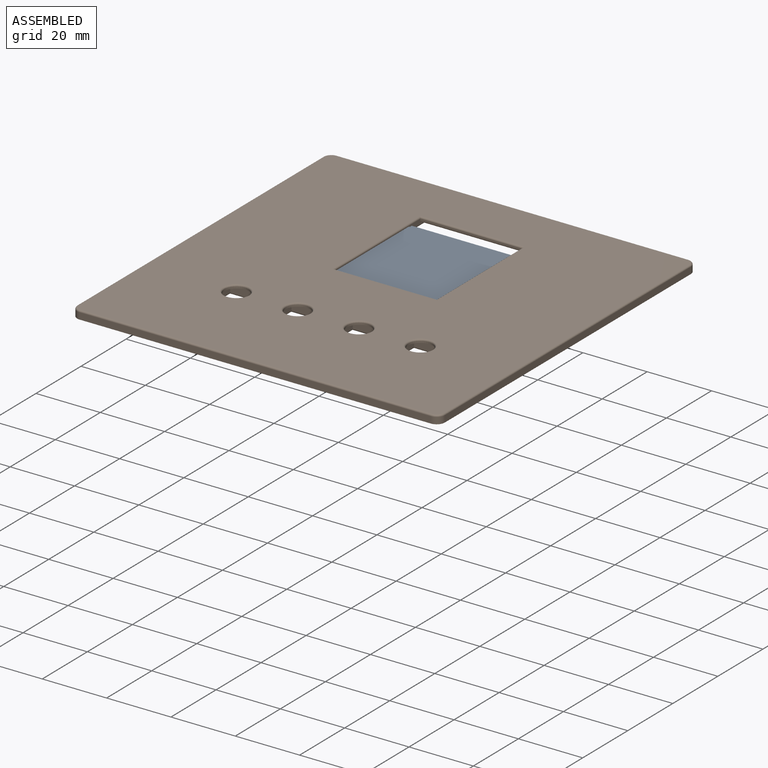
[diagram: assembled view]
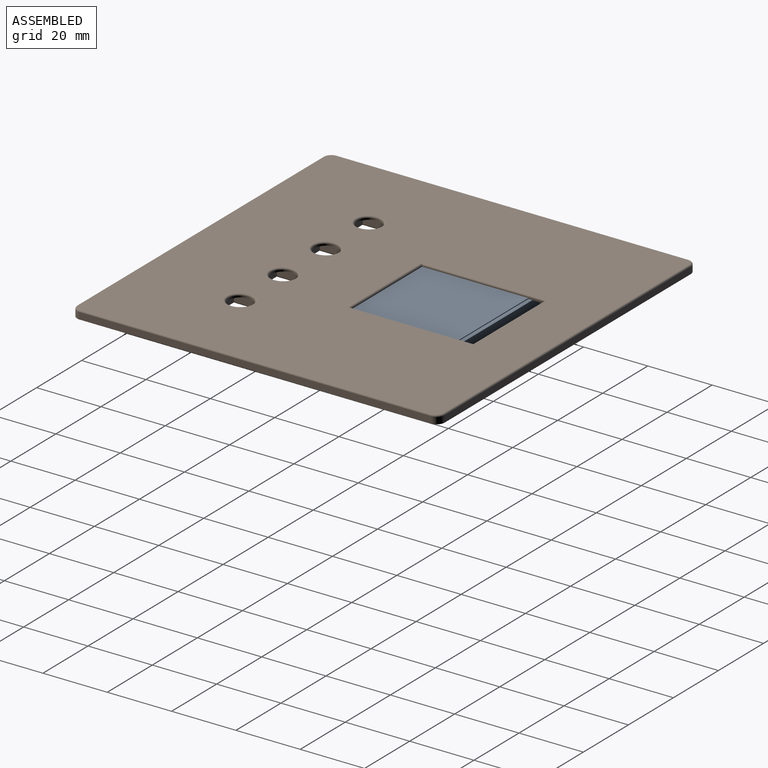
[diagram: assembled view, second angle]
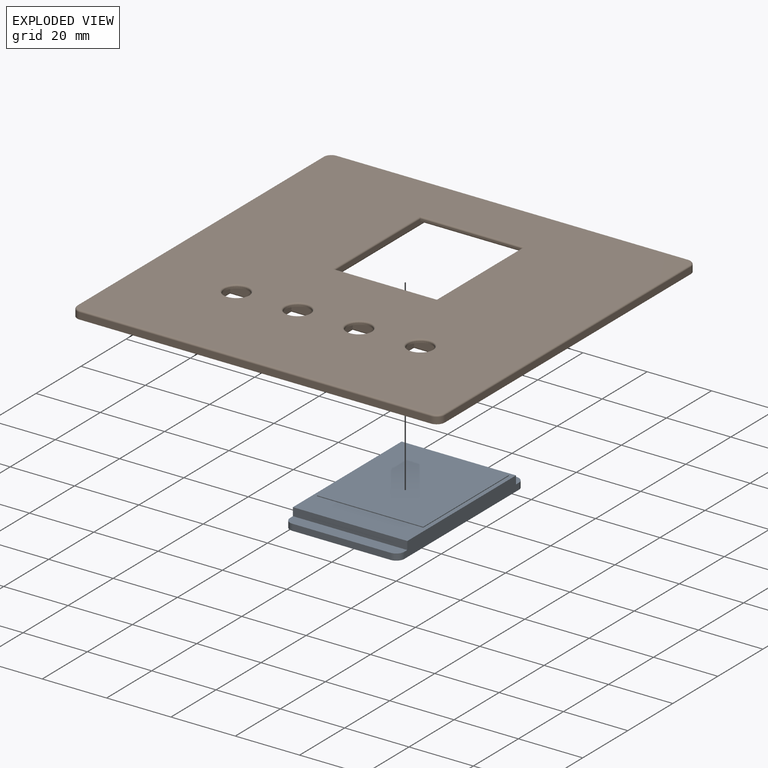
[diagram: exploded view]
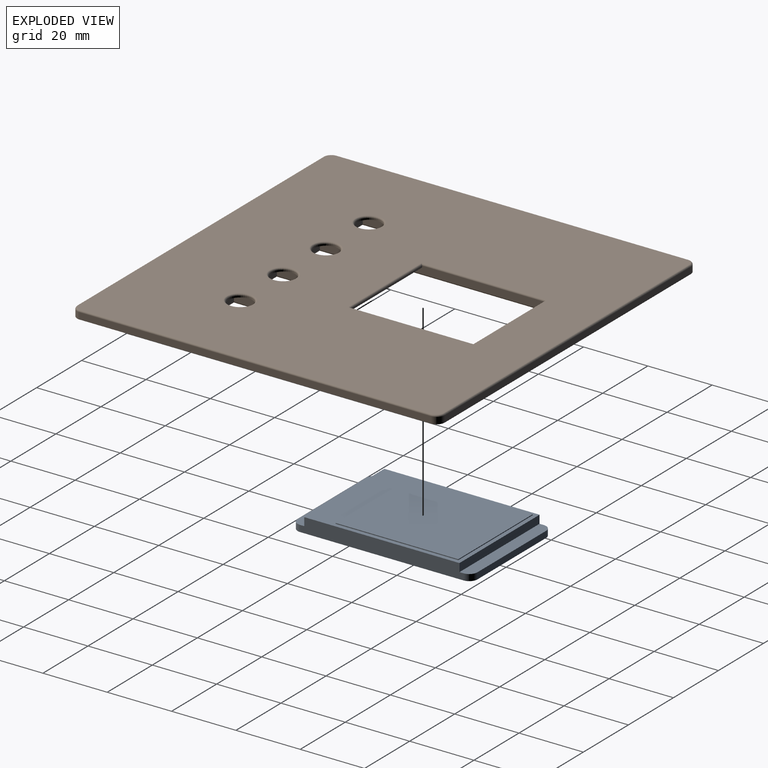
[diagram: exploded view, second angle]
ASSEMBLY  parts=2 mates=3
PART A: 19 faces, bbox 35.6x55.9x4.8 mm
  f0: plane 48.26x35.56mm, normal (0,0,1), area 458.1mm2, adj f1,f2,f3,f4,f14,f15,f16,f17
  f1: plane 35.56x2.54mm, normal (0,-1,0), area 90.3mm2, adj f0,f2,f4,f5
  f2: plane 50.8x4.54mm, normal (1,0,0), area 224.2mm2, adj f0,f1,f3,f5,f8,f9,f11,f12
  f3: plane 35.56x2.54mm, normal (0,1,0), area 90.3mm2, adj f0,f2,f4,f9
  f4: plane 50.8x4.54mm, normal (-1,0,0), area 224.2mm2, adj f0,f1,f3,f5,f8,f9,f10,f13
  f5: plane 35.56x3.81mm, normal (0,0,1), area 132.7mm2, adj f1,f2,f4,f7,f12,f13
  f6: plane 30.48x2mm, normal (0,1,0), area 61mm2, adj f8,f9,f10,f11
  f7: plane 30.48x2mm, normal (0,-1,0), area 61mm2, adj f5,f8,f12,f13
  f8: plane 55.88x35.56mm, normal (0,0,-1), area 1981.6mm2, adj f2,f4,f6,f7,f10,f11,f12,f13
  f9: plane 35.56x3.81mm, normal (0,0,1), area 132.7mm2, adj f2,f3,f4,f6,f10,f11
  f10: cylinder r=2.54mm len=2.54mm, axis (0,0,-1), area 8mm2, adj f4,f6,f8,f9
  f11: cylinder r=2.54mm len=2.54mm, axis (0,0,1), area 8mm2, adj f2,f6,f8,f9
  f12: cylinder r=2.54mm len=2.54mm, axis (0,0,-1), area 8mm2, adj f2,f5,f7,f8
  f13: cylinder r=2.54mm len=2.54mm, axis (0,0,1), area 8mm2, adj f4,f5,f7,f8
  f14: plane 38.1x0.25mm, normal (1,0,0), area 9.7mm2, adj f0,f15,f17,f18
  f15: plane 33.02x0.25mm, normal (0,1,0), area 8.4mm2, adj f0,f14,f16,f18
  f16: plane 38.1x0.25mm, normal (-1,0,0), area 9.7mm2, adj f0,f15,f17,f18
  f17: plane 33.02x0.25mm, normal (0,-1,0), area 8.4mm2, adj f0,f14,f16,f18
  f18: plane 38.1x33.02mm, normal (0,0,1), area 1258.1mm2, adj f14,f15,f16,f17
PART B: 88 faces, bbox 114.7x114.7x5.1 mm
  f0: plane 113.3x113.3mm, normal (0,0,1), area 11319.4mm2, adj f44,f45,f46,f47,f48,f49,f50,f51
  f1: plane 114.3x114.3mm, normal (0,0,-1), area 2496.8mm2, adj f10,f11,f12,f13,f39,f40,f41,f42
  f2: cylinder r=3.81mm len=7.62mm, axis (0,0,1), area 12mm2, adj f34,f44
  f3: cylinder r=3.81mm len=7.62mm, axis (0,0,1), area 12mm2, adj f29,f45
  f4: cylinder r=3.81mm len=7.62mm, axis (0,0,1), area 12mm2, adj f24,f46
  f5: cylinder r=3.81mm len=7.62mm, axis (0,0,1), area 12mm2, adj f19,f47
  f6: plane 31.75x0.5mm, normal (0,-1,0), area 15.9mm2, adj f7,f8,f14,f49
  f7: plane 38.1x0.5mm, normal (-1,0,0), area 19mm2, adj f6,f9,f14,f48
  f8: plane 38.1x0.5mm, normal (1,0,0), area 19mm2, adj f6,f9,f14,f51
  f9: plane 31.75x0.5mm, normal (0,1,0), area 15.9mm2, adj f7,f8,f14,f50
  f10: plane 109.22x2.04mm, normal (0,-1,0), area 222.8mm2, adj f1,f52,f60,f62
  f11: plane 109.22x2.04mm, normal (1,0,0), area 222.8mm2, adj f1,f53,f58,f60
  f12: plane 109.22x2.04mm, normal (0,1,0), area 222.8mm2, adj f1,f55,f56,f58
  f13: plane 109.22x2.04mm, normal (-1,0,0), area 222.8mm2, adj f1,f54,f56,f62
  f14: plane 58.42x38.1mm, normal (0,0,-1), area 1016.1mm2, adj f6,f7,f8,f9,f15,f16,f17,f18
  f15: plane 38.1x3.58mm, normal (0,-1,0), area 136.4mm2, adj f14,f16,f18,f68
  f16: plane 58.42x3.58mm, normal (-1,0,0), area 209.1mm2, adj f14,f15,f17,f69
  f17: plane 38.1x3.58mm, normal (0,1,0), area 136.4mm2, adj f14,f16,f18,f71
  f18: plane 58.42x3.58mm, normal (1,0,0), area 209.1mm2, adj f14,f15,f17,f70
  f19: plane 13x13mm, normal (0,0,-1), area 123.4mm2, adj f5,f20,f21,f22,f23
  f20: plane 13x3.58mm, normal (0,1,0), area 46.5mm2, adj f19,f21,f23,f76
  f21: plane 13x3.58mm, normal (1,0,0), area 46.5mm2, adj f19,f20,f22,f77
  f22: plane 13x3.58mm, normal (0,-1,0), area 46.5mm2, adj f19,f21,f23,f79
  f23: plane 13x3.58mm, normal (-1,0,0), area 46.5mm2, adj f19,f20,f22,f78
  f24: plane 13x13mm, normal (0,0,-1), area 123.4mm2, adj f4,f25,f26,f27,f28
  f25: plane 13x3.58mm, normal (0,1,0), area 46.5mm2, adj f24,f26,f28,f84
  f26: plane 13x3.58mm, normal (1,0,0), area 46.5mm2, adj f24,f25,f27,f85
  f27: plane 13x3.58mm, normal (0,-1,0), area 46.5mm2, adj f24,f26,f28,f87
  f28: plane 13x3.58mm, normal (-1,0,0), area 46.5mm2, adj f24,f25,f27,f86
  f29: plane 13x13mm, normal (0,0,-1), area 123.4mm2, adj f3,f30,f31,f32,f33
  f30: plane 13x3.58mm, normal (0,1,0), area 46.5mm2, adj f29,f31,f33,f72
  f31: plane 13x3.58mm, normal (1,0,0), area 46.5mm2, adj f29,f30,f32,f73
  f32: plane 13x3.58mm, normal (0,-1,0), area 46.5mm2, adj f29,f31,f33,f75
  f33: plane 13x3.58mm, normal (-1,0,0), area 46.5mm2, adj f29,f30,f32,f74
  f34: plane 13x13mm, normal (0,0,-1), area 123.4mm2, adj f2,f35,f36,f37,f38
  f35: plane 13x3.58mm, normal (0,1,0), area 46.5mm2, adj f34,f36,f38,f80
  f36: plane 13x3.58mm, normal (1,0,0), area 46.5mm2, adj f34,f35,f37,f81
  f37: plane 13x3.58mm, normal (0,-1,0), area 46.5mm2, adj f34,f36,f38,f83
  f38: plane 13x3.58mm, normal (-1,0,0), area 46.5mm2, adj f34,f35,f37,f82
  f39: plane 102.25x2.04mm, normal (0,1,0), area 208.6mm2, adj f1,f40,f42,f64
  f40: plane 103.3x2.04mm, normal (1,0,0), area 210.7mm2, adj f1,f39,f41,f65
  f41: plane 102.25x2.04mm, normal (0,-1,0), area 208.6mm2, adj f1,f40,f42,f67
  f42: plane 103.3x2.04mm, normal (-1,0,0), area 210.7mm2, adj f1,f39,f41,f66
  f43: plane 102.3x101.25mm, normal (0,0,-1), area 7250.3mm2, adj f64,f65,f66,f67,f68,f69,f70,f71
  f44: torus R=4.31mm, axis (0,0,1), area 19.7mm2, adj f0,f2
  f45: torus R=4.31mm, axis (0,0,1), area 19.7mm2, adj f0,f3
  f46: torus R=4.31mm, axis (0,0,1), area 19.7mm2, adj f0,f4
  f47: torus R=4.31mm, axis (0,0,1), area 19.7mm2, adj f0,f5
  f48: cylinder r=0.5mm len=39.1mm, axis (0,-1,0), area 30.2mm2, adj f0,f7,f49,f50
  f49: cylinder r=0.5mm len=32.75mm, axis (1,0,0), area 25.2mm2, adj f0,f6,f48,f51
  f50: cylinder r=0.5mm len=32.75mm, axis (-1,0,0), area 25.2mm2, adj f0,f9,f48,f51
  f51: cylinder r=0.5mm len=39.1mm, axis (0,1,0), area 30.2mm2, adj f0,f8,f49,f50
  f52: cylinder r=0.5mm len=109.22mm, axis (-1,0,0), area 85.8mm2, adj f0,f10,f61,f63
  f53: cylinder r=0.5mm len=109.22mm, axis (0,-1,0), area 85.8mm2, adj f0,f11,f59,f61
  f54: cylinder r=0.5mm len=109.22mm, axis (0,1,0), area 85.8mm2, adj f0,f13,f57,f63
  f55: cylinder r=0.5mm len=109.22mm, axis (1,0,0), area 85.8mm2, adj f0,f12,f57,f59
  f56: cylinder r=2.54mm len=2.54mm, axis (0,0,1), area 8.1mm2, adj f1,f12,f13,f57
  f57: torus R=2.04mm, axis (0,0,1), area 2.9mm2, adj f0,f54,f55,f56
  f58: cylinder r=2.54mm len=2.54mm, axis (0,0,-1), area 8.1mm2, adj f1,f11,f12,f59
  f59: torus R=2.04mm, axis (0,0,1), area 2.9mm2, adj f0,f53,f55,f58
  f60: cylinder r=2.54mm len=2.54mm, axis (0,0,1), area 8.1mm2, adj f1,f10,f11,f61
  f61: torus R=2.04mm, axis (0,0,1), area 2.9mm2, adj f0,f52,f53,f60
  f62: cylinder r=2.54mm len=2.54mm, axis (0,0,-1), area 8.1mm2, adj f1,f10,f13,f63
  f63: torus R=2.04mm, axis (0,0,1), area 2.9mm2, adj f0,f52,f54,f62
  f64: cylinder r=0.5mm len=102.25mm, axis (-1,0,0), area 80mm2, adj f39,f43,f65,f66
  f65: cylinder r=0.5mm len=103.3mm, axis (0,1,0), area 80.8mm2, adj f40,f43,f64,f67
  f66: cylinder r=0.5mm len=103.3mm, axis (0,-1,0), area 80.8mm2, adj f42,f43,f64,f67
  f67: cylinder r=0.5mm len=102.25mm, axis (1,0,0), area 80mm2, adj f41,f43,f65,f66
  f68: cylinder r=0.5mm len=39.1mm, axis (-1,0,0), area 30.2mm2, adj f15,f43,f69,f70
  f69: cylinder r=0.5mm len=59.42mm, axis (0,1,0), area 46.2mm2, adj f16,f43,f68,f71
  f70: cylinder r=0.5mm len=59.42mm, axis (0,-1,0), area 46.2mm2, adj f18,f43,f68,f71
  f71: cylinder r=0.5mm len=39.1mm, axis (1,0,0), area 30.2mm2, adj f17,f43,f69,f70
  f72: cylinder r=0.5mm len=14mm, axis (1,0,0), area 10.5mm2, adj f30,f43,f73,f74
  f73: cylinder r=0.5mm len=14mm, axis (0,-1,0), area 10.5mm2, adj f31,f43,f72,f75
  f74: cylinder r=0.5mm len=14mm, axis (0,1,0), area 10.5mm2, adj f33,f43,f72,f75
  f75: cylinder r=0.5mm len=14mm, axis (-1,0,0), area 10.5mm2, adj f32,f43,f73,f74
  f76: cylinder r=0.5mm len=14mm, axis (1,0,0), area 10.5mm2, adj f20,f43,f77,f78
  f77: cylinder r=0.5mm len=14mm, axis (0,-1,0), area 10.5mm2, adj f21,f43,f76,f79
  f78: cylinder r=0.5mm len=14mm, axis (0,1,0), area 10.5mm2, adj f23,f43,f76,f79
  f79: cylinder r=0.5mm len=14mm, axis (-1,0,0), area 10.5mm2, adj f22,f43,f77,f78
  f80: cylinder r=0.5mm len=14mm, axis (1,0,0), area 10.5mm2, adj f35,f43,f81,f82
  f81: cylinder r=0.5mm len=14mm, axis (0,-1,0), area 10.5mm2, adj f36,f43,f80,f83
  f82: cylinder r=0.5mm len=14mm, axis (0,1,0), area 10.5mm2, adj f38,f43,f80,f83
  f83: cylinder r=0.5mm len=14mm, axis (-1,0,0), area 10.5mm2, adj f37,f43,f81,f82
  f84: cylinder r=0.5mm len=14mm, axis (1,0,0), area 10.5mm2, adj f25,f43,f85,f86
  f85: cylinder r=0.5mm len=14mm, axis (0,-1,0), area 10.5mm2, adj f26,f43,f84,f87
  f86: cylinder r=0.5mm len=14mm, axis (0,1,0), area 10.5mm2, adj f28,f43,f84,f87
  f87: cylinder r=0.5mm len=14mm, axis (-1,0,0), area 10.5mm2, adj f27,f43,f85,f86
PLACE A t=(-0.74,93.29,-37.14)mm
PLACE B t=(0.53,82.4,-36.14)mm
MATE planar B.f14 <-> A.f0  axis (0,0,-1) through (0.53,93.84,-34.6)mm
MATE planar A.f4 <-> B.f18  axis (-1,0,0) through (-18.52,69.16,-37.14)mm
MATE planar B.f17 <-> A.f1  axis (0,1,0) through (0.53,69.16,-36.39)mm
